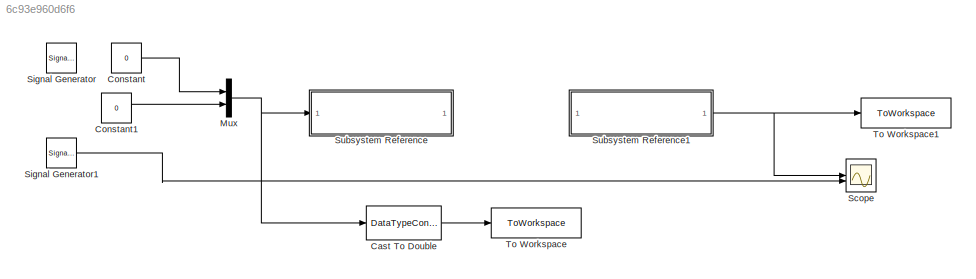
MODEL slx_6c93e960d6f6
KIND model
CONFIG AbsTol = auto
CONFIG EnableMultiTasking = on
CONFIG FixedStep = 0.01
CONFIG MaxStep = auto
CONFIG MinStep = auto
CONFIG RelTol = 1e-3
CONFIG SampleTimeConstraint = Unconstrained
CONFIG SolverName = FixedStepDiscrete
CONFIG StartTime = 0.0
CONFIG StopTime = 50
BLOCK [DataTypeConversion] Cast To Double
  OutDataTypeStr = double
  RndMeth = Floor
  SaturateOnIntegerOverflow = off
BLOCK [Constant] Constant
  Value = 0
BLOCK [Constant] Constant1
  Value = 0
BLOCK [Mux] Mux
  DisplayOption = bar
  Inputs = 2
BLOCK [Scope] Scope
  Floating = off
  NumInputPorts = 2
  ScopeSpecificationString = Simulink.scopes.TimeScopeBlockCfg('CurrentConfiguration', extmgr.ConfigurationSet(extmgr.Configuration('Core','General UI',true),extmgr.Configuration('Core','Source UI',true),extmgr.Configuration('Sources','WiredSimulink',true),extmgr.Configuration('Visuals','Time Domain',true,'SerializedDisplays',{struct('MinYLimReal','-125.00000','MaxYLimReal','125.00000','YLabelReal','','MinYLimMag',' 0.00000',...<+1401ch>
BLOCK [SignalGenerator] Signal Generator
  Amplitude = 100
  Commented = on
  Frequency = 0.25
  WaveForm = square
BLOCK [SignalGenerator] Signal Generator1
  Amplitude = 100
  Commented = on
  Frequency = 0.5
  WaveForm = square
BLOCK [SubSystem] Subsystem Reference
  ReferencedSubsystem = sub_motores
BLOCK [SubSystem] Subsystem Reference1
  ReferencedSubsystem = Enc_to_ms
BLOCK [ToWorkspace] To Workspace
  FixptAsFi = on
  MaxDataPoints = inf
  SampleTime = 0.01
  SaveFormat = Timeseries
  VariableName = pwm
BLOCK [ToWorkspace] To Workspace1
  FixptAsFi = on
  MaxDataPoints = inf
  SampleTime = 0.01
  SaveFormat = Timeseries
  VariableName = msout
LINE Cast To Double:1 -> To Workspace:1
LINE Constant1:1 -> Mux:2
LINE Constant:1 -> Mux:1
NET Mux:1 -> Cast To Double:1, Subsystem Reference:1
LINE Signal Generator1:1 -> Scope:2
NET Subsystem Reference1:1 -> Scope:1, To Workspace1:1
note: NET lines group one-source signal fan-out (src -> all destinations, sorted); 1:1 wires keep LINE
